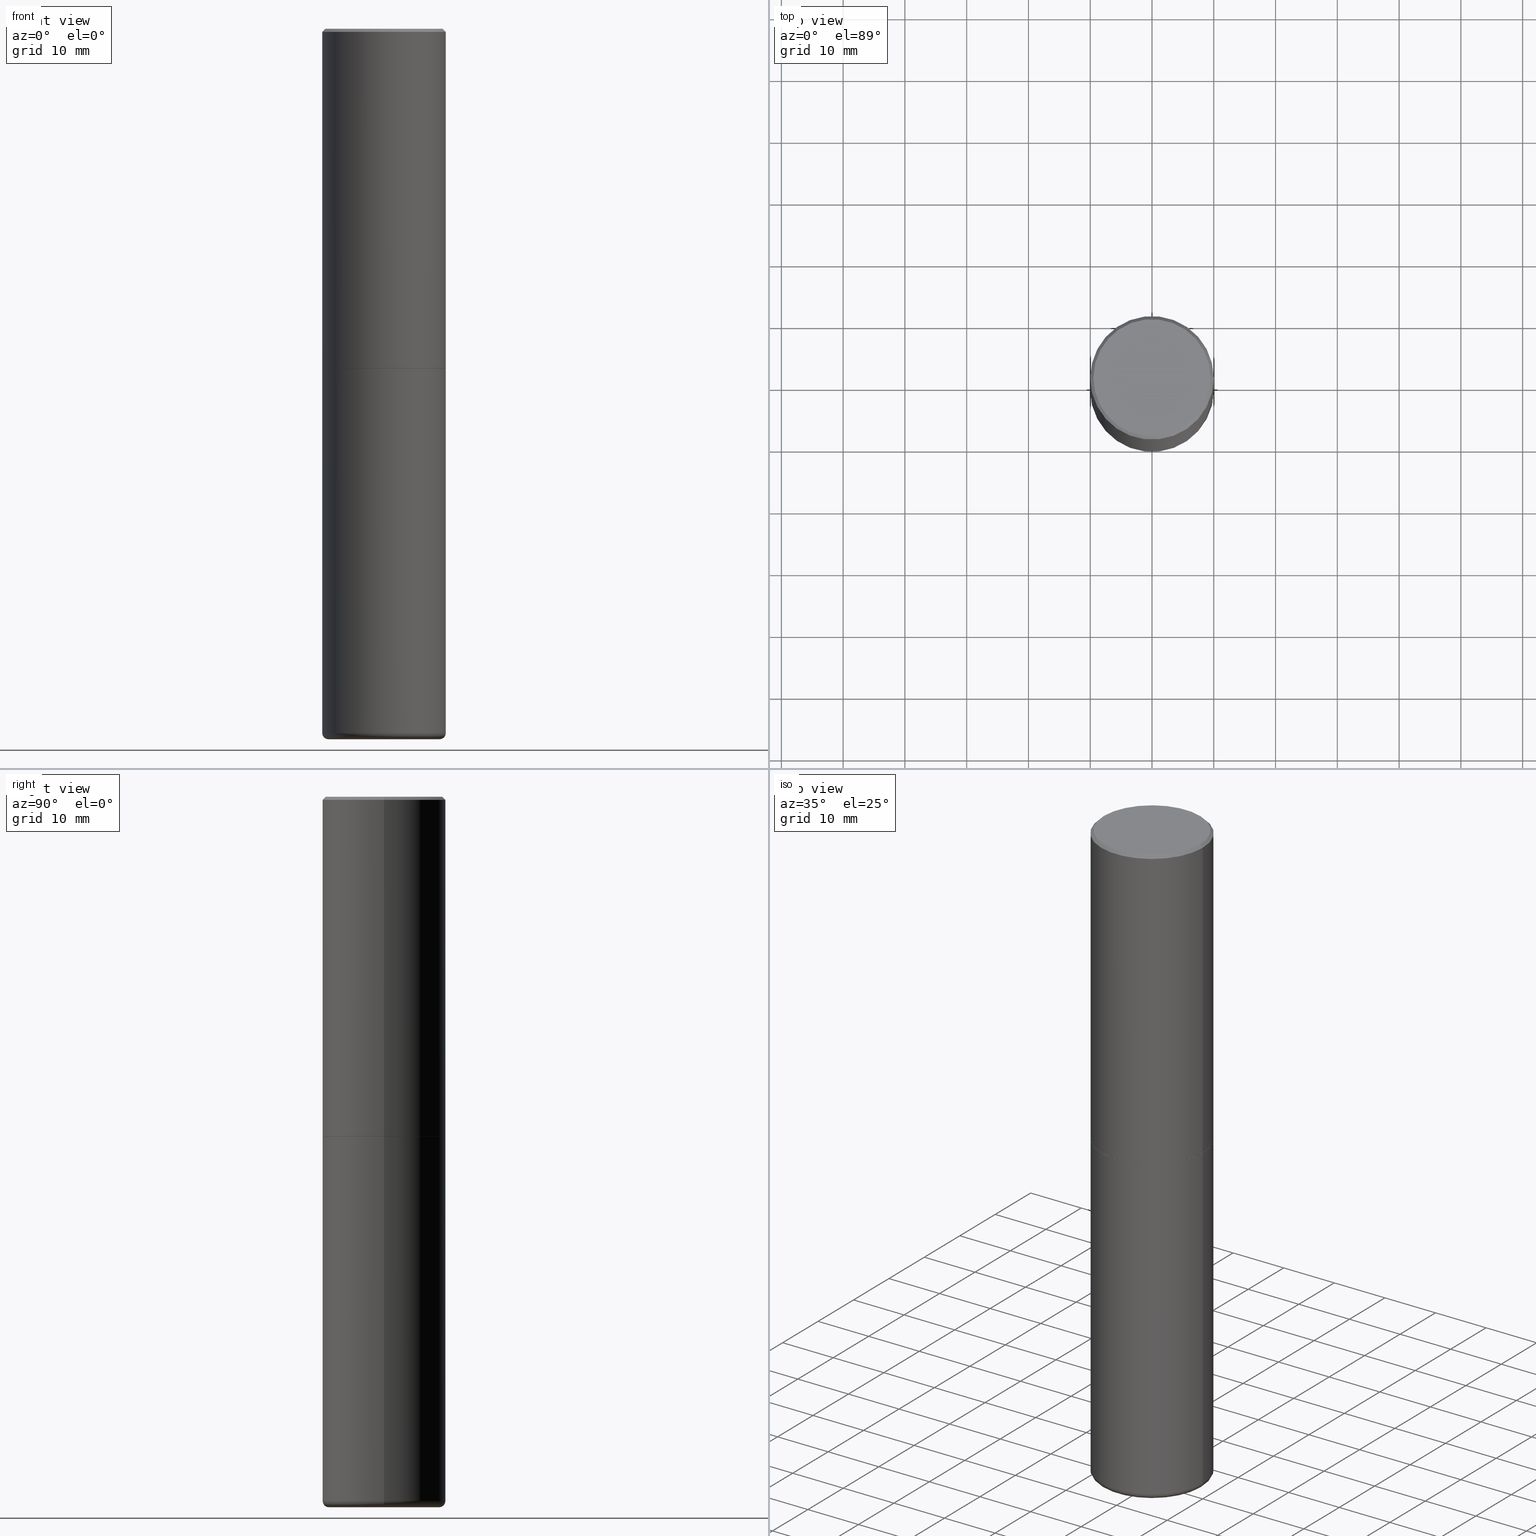
[diagram: canonical four-view strip — front | top / right | iso, engineering-drawing reading convention]
A machine part, canonical four-view strip (front | top / right | iso — engineering-drawing reading convention). The complete STEP part file that produces these views, byte-faithful:
ISO-10303-21;
HEADER;
FILE_DESCRIPTION (( 'STEP AP203' ),
    '1' );
FILE_NAME ('74528.STEP',
    '2024-03-06T15:24:09',
    ( '' ),
    ( '' ),
    'SwSTEP 2.0',
    'SolidWorks 2023',
    '' );
FILE_SCHEMA (( 'CONFIG_CONTROL_DESIGN' ));
ENDSEC;

DATA;
#1 = DIRECTION ( 'NONE',  ( 1.000000000000000000, -6.982962677686268288E-15, 0.000000000000000000 ) ) ;
#2 = EDGE_LOOP ( 'NONE', ( #132, #71, #366, #208 ) ) ;
#3 = ORIENTED_EDGE ( 'NONE', *, *, #265, .T. ) ;
#4 = CARTESIAN_POINT ( 'NONE',  ( -0.3937000000000000499, 2.797406750687514786E-15, -1.936584745033356735E-29 ) ) ;
#5 = ORIENTED_EDGE ( 'NONE', *, *, #145, .F. ) ;
#6 = CARTESIAN_POINT ( 'NONE',  ( 5.295418152913293224E-29, -7.560453691130945845E-15, -2.165399999999999547 ) ) ;
#7 = CIRCLE ( 'NONE', #284, 0.3937000000000000499 ) ;
#8 = LOCAL_TIME ( 10, 24, 9.000000000000000000, #286 ) ;
#9 = UNCERTAINTY_MEASURE_WITH_UNIT (LENGTH_MEASURE( 1.000000000000000082E-05 ), #306, 'distance_accuracy_value', 'NONE');
#10 = VERTEX_POINT ( 'NONE', #56 ) ;
#11 = CARTESIAN_POINT ( 'NONE',  ( 5.295418152913293224E-29, -7.560453691130945845E-15, -2.165399999999999547 ) ) ;
#12 = CARTESIAN_POINT ( 'NONE',  ( 0.000000000000000000, 0.000000000000000000, 0.000000000000000000 ) ) ;
#13 = CARTESIAN_POINT ( 'NONE',  ( 4.890937612370294178E-31, -6.982962677686321191E-17, -0.02000000000000008715 ) ) ;
#14 = CC_DESIGN_PERSON_AND_ORGANIZATION_ASSIGNMENT ( #210, #274, ( #48 ) ) ;
#15 = ORIENTED_EDGE ( 'NONE', *, *, #38, .T. ) ;
#16 = DIRECTION ( 'NONE',  ( 2.438088387897960049E-29, -3.491481338843145188E-15, -1.000000000000000000 ) ) ;
#17 = CARTESIAN_POINT ( 'NONE',  ( 5.295418152913293224E-29, -7.560453691130945845E-15, -2.165399999999999547 ) ) ;
#18 = ADVANCED_FACE ( 'NONE', ( #401 ), #266, .F. ) ;
#19 = CARTESIAN_POINT ( 'NONE',  ( -0.3937000000000000499, 2.679362779428219918E-15, -0.02000000000000008715 ) ) ;
#20 = AXIS2_PLACEMENT_3D ( 'NONE', #308, #239, #396 ) ;
#21 = ORIENTED_EDGE ( 'NONE', *, *, #107, .F. ) ;
#22 = ORIENTED_EDGE ( 'NONE', *, *, #359, .T. ) ;
#23 = ORIENTED_EDGE ( 'NONE', *, *, #89, .T. ) ;
#24 = CIRCLE ( 'NONE', #339, 0.03940000000000033753 ) ;
#25 = AXIS2_PLACEMENT_3D ( 'NONE', #399, #304, #82 ) ;
#26 = ORIENTED_EDGE ( 'NONE', *, *, #297, .F. ) ;
#27 = APPROVAL_DATE_TIME ( #124, #415 ) ;
#28 = PERSON_AND_ORGANIZATION ( #385, #279 ) ;
#29 = PERSON_AND_ORGANIZATION ( #385, #279 ) ;
#30 = DIRECTION ( 'NONE',  ( 0.7071067811865450192, -7.319954787623246579E-15, -0.7071067811865500152 ) ) ;
#31 = PERSON_AND_ORGANIZATION ( #385, #279 ) ;
#32 = AXIS2_PLACEMENT_3D ( 'NONE', #219, #156, #349 ) ;
#33 = EDGE_CURVE ( 'NONE', #293, #326, #407, .T. ) ;
#34 = CARTESIAN_POINT ( 'NONE',  ( 1.097575309592012950E-28, -1.567046654499580152E-14, -4.488199999999999079 ) ) ;
#35 = DATE_TIME_ROLE ( 'classification_date' ) ;
#36 = CARTESIAN_POINT ( 'NONE',  ( 6.196559828010245443E-29, -2.279008847458637242E-14, -4.527600000000000513 ) ) ;
#37 = DATE_AND_TIME ( #62, #8 ) ;
#38 = EDGE_CURVE ( 'NONE', #331, #393, #227, .T. ) ;
#39 = VERTEX_POINT ( 'NONE', #19 ) ;
#40 = PERSON_AND_ORGANIZATION ( #385, #279 ) ;
#41 = AXIS2_PLACEMENT_3D ( 'NONE', #95, #343, #64 ) ;
#42 = EDGE_LOOP ( 'NONE', ( #165, #15, #133, #307 ) ) ;
#43 = ORIENTED_EDGE ( 'NONE', *, *, #79, .T. ) ;
#44 = DIRECTION ( 'NONE',  ( 1.000000000000000000, -6.982962677686261189E-15, 0.000000000000000000 ) ) ;
#45 = CARTESIAN_POINT ( 'NONE',  ( 1.097575309592012950E-28, -1.567046654499580152E-14, -4.488199999999999079 ) ) ;
#46 = VERTEX_POINT ( 'NONE', #376 ) ;
#47 = CARTESIAN_POINT ( 'NONE',  ( -0.3926999999999999935, -4.764853913452808876E-15, -2.165399999999999547 ) ) ;
#48 = PRODUCT_DEFINITION ( 'UNKNOWN', '', #363, #164 ) ;
#49 = VECTOR ( 'NONE', #365, 39.37007874015748143 ) ;
#50 = CARTESIAN_POINT ( 'NONE',  ( 5.295418152913293224E-29, -7.560453691130945845E-15, -2.165399999999999547 ) ) ;
#51 = DIRECTION ( 'NONE',  ( -2.445468806185136597E-29, 3.491481338843145583E-15, 1.000000000000000000 ) ) ;
#52 = VERTEX_POINT ( 'NONE', #364 ) ;
#53 = DIRECTION ( 'NONE',  ( 1.000000000000000000, -6.982962677686262766E-15, 0.000000000000000000 ) ) ;
#54 = CARTESIAN_POINT ( 'NONE',  ( 0.3937000000000001609, -2.749192406205084400E-15, 1.919750796630860732E-29 ) ) ;
#55 = CIRCLE ( 'NONE', #248, 0.3737000000000003097 ) ;
#56 = CARTESIAN_POINT ( 'NONE',  ( -0.3737000000000003097, 2.644447966039789847E-15, -2.219626494852397645E-16 ) ) ;
#57 =( GEOMETRIC_REPRESENTATION_CONTEXT ( 3 ) GLOBAL_UNCERTAINTY_ASSIGNED_CONTEXT ( ( #9 ) ) GLOBAL_UNIT_ASSIGNED_CONTEXT ( ( #306, #272, #143 ) ) REPRESENTATION_CONTEXT ( 'NONE', 'WORKASPACE' ) );
#58 = VECTOR ( 'NONE', #332, 39.37007874015748143 ) ;
#59 = SHAPE_DEFINITION_REPRESENTATION ( #87, #346 ) ;
#60 = EDGE_CURVE ( 'NONE', #184, #39, #169, .T. ) ;
#61 = DIRECTION ( 'NONE',  ( -2.445468806185136597E-29, 3.491481338843145583E-15, 1.000000000000000000 ) ) ;
#62 = CALENDAR_DATE ( 2024, 6, 3 ) ;
#63 = CC_DESIGN_PERSON_AND_ORGANIZATION_ASSIGNMENT ( #40, #148, ( #363 ) ) ;
#64 = DIRECTION ( 'NONE',  ( 1.000000000000000000, -6.982962677686265922E-15, 4.876176775795935793E-29 ) ) ;
#65 = FACE_OUTER_BOUND ( 'NONE', #354, .T. ) ;
#66 = ORIENTED_EDGE ( 'NONE', *, *, #398, .T. ) ;
#67 = AXIS2_PLACEMENT_3D ( 'NONE', #180, #300, #138 ) ;
#68 = AXIS2_PLACEMENT_3D ( 'NONE', #213, #61, #317 ) ;
#69 = CARTESIAN_POINT ( 'NONE',  ( 0.3926999999999999935, -1.030266313465834305E-14, -2.165399999999999547 ) ) ;
#70 = MECHANICAL_CONTEXT ( 'NONE', #258, 'mechanical' ) ;
#71 = ORIENTED_EDGE ( 'NONE', *, *, #297, .T. ) ;
#72 = ORIENTED_EDGE ( 'NONE', *, *, #33, .F. ) ;
#73 = DIMENSIONAL_EXPONENTS ( 1.000000000000000000, 0.000000000000000000, 0.000000000000000000, 0.000000000000000000, 0.000000000000000000, 0.000000000000000000, 0.000000000000000000 ) ;
#74 = CLOSED_SHELL ( 'NONE', ( #377, #75, #348, #251, #117, #277, #206, #18 ) ) ;
#75 = ADVANCED_FACE ( 'NONE', ( #76 ), #108, .T. ) ;
#76 = FACE_OUTER_BOUND ( 'NONE', #144, .T. ) ;
#77 = DIRECTION ( 'NONE',  ( -1.000000000000000000, 7.105427357601014480E-15, 0.000000000000000000 ) ) ;
#78 = ORIENTED_EDGE ( 'NONE', *, *, #107, .T. ) ;
#79 = EDGE_CURVE ( 'NONE', #331, #39, #135, .T. ) ;
#80 = DIRECTION ( 'NONE',  ( -2.445468806185136597E-29, 3.491481338843145583E-15, 1.000000000000000000 ) ) ;
#81 = DIRECTION ( 'NONE',  ( 1.000000000000000000, -6.982962677686265922E-15, 4.876176775795935793E-29 ) ) ;
#82 = DIRECTION ( 'NONE',  ( 1.000000000000000000, -6.982962677686266711E-15, 4.877734241229871763E-29 ) ) ;
#83 = DIRECTION ( 'NONE',  ( -2.445468806185136597E-29, 3.491481338843145583E-15, 1.000000000000000000 ) ) ;
#84 = AXIS2_PLACEMENT_3D ( 'NONE', #17, #80, #197 ) ;
#85 = FACE_OUTER_BOUND ( 'NONE', #295, .T. ) ;
#86 = CARTESIAN_POINT ( 'NONE',  ( 4.890937612370294178E-31, -6.982962677686321191E-17, -0.02000000000000008715 ) ) ;
#87 = PRODUCT_DEFINITION_SHAPE ( 'NONE', 'NONE',  #48 ) ;
#88 = VECTOR ( 'NONE', #30, 39.37007874015748143 ) ;
#89 = EDGE_CURVE ( 'NONE', #150, #46, #342, .T. ) ;
#90 = PRODUCT_RELATED_PRODUCT_CATEGORY ( 'detail', '', ( #310 ) ) ;
#91 = AXIS2_PLACEMENT_3D ( 'NONE', #86, #336, #166 ) ;
#92 = FACE_OUTER_BOUND ( 'NONE', #168, .T. ) ;
#93 = SECURITY_CLASSIFICATION_LEVEL ( 'unclassified' ) ;
#94 = PERSON_AND_ORGANIZATION_ROLE ( 'design_owner' ) ;
#95 = CARTESIAN_POINT ( 'NONE',  ( 5.295418152913293224E-29, -7.560453691130945845E-15, -2.165399999999999547 ) ) ;
#96 = EDGE_LOOP ( 'NONE', ( #21, #245 ) ) ;
#97 = VECTOR ( 'NONE', #402, 39.37007874015748143 ) ;
#98 = COORDINATED_UNIVERSAL_TIME_OFFSET ( 5, 0, .BEHIND. ) ;
#99 = DIRECTION ( 'NONE',  ( 1.000000000000000000, 0.000000000000000000, 0.000000000000000000 ) ) ;
#100 = MANIFOLD_SOLID_BREP ( 'Body-Move/Copy2[1]', #373 ) ;
#101 = LINE ( 'NONE', #69, #209 ) ;
#102 = ORIENTED_EDGE ( 'NONE', *, *, #181, .T. ) ;
#103 = CARTESIAN_POINT ( 'NONE',  ( 0.3937000000000002164, -1.841965895120088790E-14, -4.488199999999999079 ) ) ;
#104 = CARTESIAN_POINT ( 'NONE',  ( -0.3937000000000000499, 2.679362779428219918E-15, -0.02000000000000008715 ) ) ;
#105 = AXIS2_PLACEMENT_3D ( 'NONE', #292, #125, #259 ) ;
#106 = DIRECTION ( 'NONE',  ( -2.445468806185136597E-29, 3.491481338843145583E-15, 1.000000000000000000 ) ) ;
#107 = EDGE_CURVE ( 'NONE', #323, #225, #160, .T. ) ;
#108 = CYLINDRICAL_SURFACE ( 'NONE', #221, 0.3937000000000001609 ) ;
#109 = LINE ( 'NONE', #4, #299 ) ;
#110 = DIRECTION ( 'NONE',  ( -2.445468806185136597E-29, 3.491481338843145583E-15, 1.000000000000000000 ) ) ;
#111 = DIRECTION ( 'NONE',  ( 1.000000000000000000, -6.982962677686268288E-15, 0.000000000000000000 ) ) ;
#112 = CARTESIAN_POINT ( 'NONE',  ( 0.3737000000000003097, -2.667287895133369937E-15, -2.219626494852029345E-16 ) ) ;
#113 = VERTEX_POINT ( 'NONE', #112 ) ;
#114 = EDGE_CURVE ( 'NONE', #391, #52, #192, .T. ) ;
#115 = AXIS2_PLACEMENT_3D ( 'NONE', #298, #106, #81 ) ;
#116 = AXIS2_PLACEMENT_3D ( 'NONE', #11, #174, #111 ) ;
#117 = ADVANCED_FACE ( 'NONE', ( #263 ), #171, .T. ) ;
#118 = APPROVAL_PERSON_ORGANIZATION ( #220, #328, #383 ) ;
#119 = EDGE_LOOP ( 'NONE', ( #26, #22, #356, #226 ) ) ;
#120 = DATE_TIME_ROLE ( 'creation_date' ) ;
#121 = AXIS2_PLACEMENT_3D ( 'NONE', #45, #233, #53 ) ;
#122 = ORIENTED_EDGE ( 'NONE', *, *, #367, .F. ) ;
#123 = PERSON_AND_ORGANIZATION ( #385, #279 ) ;
#124 = DATE_AND_TIME ( #278, #353 ) ;
#125 = DIRECTION ( 'NONE',  ( -2.445468806185136597E-29, 3.491481338843145583E-15, 1.000000000000000000 ) ) ;
#126 = FACE_OUTER_BOUND ( 'NONE', #237, .T. ) ;
#127 = COORDINATED_UNIVERSAL_TIME_OFFSET ( 5, 0, .BEHIND. ) ;
#128 = ORIENTED_EDGE ( 'NONE', *, *, #204, .T. ) ;
#129 = DIRECTION ( 'NONE',  ( -2.445468806185136597E-29, 3.491481338843145583E-15, 1.000000000000000000 ) ) ;
#130 = EDGE_CURVE ( 'NONE', #113, #10, #55, .T. ) ;
#131 = DIRECTION ( 'NONE',  ( 1.000000000000000000, -6.982962677686261189E-15, 0.000000000000000000 ) ) ;
#132 = ORIENTED_EDGE ( 'NONE', *, *, #33, .T. ) ;
#133 = ORIENTED_EDGE ( 'NONE', *, *, #147, .T. ) ;
#134 = EDGE_CURVE ( 'NONE', #52, #391, #403, .T. ) ;
#135 = LINE ( 'NONE', #140, #97 ) ;
#136 = AXIS2_PLACEMENT_3D ( 'NONE', #395, #199, #77 ) ;
#137 = CARTESIAN_POINT ( 'NONE',  ( -0.3937000000000002164, -1.287305979430828753E-14, -4.488199999999999079 ) ) ;
#138 = DIRECTION ( 'NONE',  ( 1.000000000000000000, -6.982962677686269077E-15, 0.000000000000000000 ) ) ;
#139 = DIRECTION ( 'NONE',  ( -2.445468806185136597E-29, 3.491481338843145583E-15, 1.000000000000000000 ) ) ;
#140 = CARTESIAN_POINT ( 'NONE',  ( -0.3937000000000001609, 2.797406750687515575E-15, -1.936584745033357296E-29 ) ) ;
#141 = DIRECTION ( 'NONE',  ( -1.000000000000000000, 6.982962677686265922E-15, -4.876176775795935793E-29 ) ) ;
#142 = DIRECTION ( 'NONE',  ( 1.000000000000000000, -6.982962677686262766E-15, 0.000000000000000000 ) ) ;
#143 =( NAMED_UNIT ( * ) SI_UNIT ( $, .STERADIAN. ) SOLID_ANGLE_UNIT ( ) );
#144 = EDGE_LOOP ( 'NONE', ( #409, #43, #360, #276 ) ) ;
#145 = EDGE_CURVE ( 'NONE', #393, #331, #152, .T. ) ;
#146 = ORIENTED_EDGE ( 'NONE', *, *, #260, .T. ) ;
#147 = EDGE_CURVE ( 'NONE', #393, #184, #268, .T. ) ;
#148 = PERSON_AND_ORGANIZATION_ROLE ( 'creator' ) ;
#149 = APPROVAL_STATUS ( 'not_yet_approved' ) ;
#150 = VERTEX_POINT ( 'NONE', #47 ) ;
#151 = FACE_OUTER_BOUND ( 'NONE', #96, .T. ) ;
#152 = CIRCLE ( 'NONE', #200, 0.3937000000000002720 ) ;
#153 = EDGE_CURVE ( 'NONE', #10, #39, #178, .T. ) ;
#154 = PERSON_AND_ORGANIZATION ( #385, #279 ) ;
#155 = EDGE_LOOP ( 'NONE', ( #159, #128, #252, #196 ) ) ;
#156 = DIRECTION ( 'NONE',  ( 2.445468806185136597E-29, -3.491481338843145583E-15, -1.000000000000000000 ) ) ;
#157 = APPROVAL_DATE_TIME ( #388, #234 ) ;
#158 = ADVANCED_FACE ( 'NONE', ( #236 ), #372, .T. ) ;
#159 = ORIENTED_EDGE ( 'NONE', *, *, #321, .F. ) ;
#160 = CIRCLE ( 'NONE', #255, 0.3543000000000000038 ) ;
#161 = CC_DESIGN_APPROVAL ( #234, ( #262 ) ) ;
#162 = DIRECTION ( 'NONE',  ( 1.000000000000000000, -6.982962677686265922E-15, 0.000000000000000000 ) ) ;
#163 = CARTESIAN_POINT ( 'NONE',  ( 0.3543000000000000038, -1.814453022170004631E-14, -4.488199999999999079 ) ) ;
#164 = DESIGN_CONTEXT ( 'detailed design', #283, 'design' ) ;
#165 = ORIENTED_EDGE ( 'NONE', *, *, #79, .F. ) ;
#166 = DIRECTION ( 'NONE',  ( 1.000000000000000000, -6.982962677686265922E-15, 0.000000000000000000 ) ) ;
#167 = CYLINDRICAL_SURFACE ( 'NONE', #115, 0.3937000000000000499 ) ;
#168 = EDGE_LOOP ( 'NONE', ( #122, #23, #146, #191 ) ) ;
#169 = CIRCLE ( 'NONE', #91, 0.3937000000000000499 ) ;
#170 = CARTESIAN_POINT ( 'NONE',  ( 5.295418152913293224E-29, -7.560453691130945845E-15, -2.165399999999999547 ) ) ;
#171 = CYLINDRICAL_SURFACE ( 'NONE', #20, 0.3937000000000001609 ) ;
#172 = CC_DESIGN_SECURITY_CLASSIFICATION ( #262, ( #363 ) ) ;
#173 = CARTESIAN_POINT ( 'NONE',  ( 0.3543000000000000038, -1.828209458645046868E-14, -4.527600000000000513 ) ) ;
#174 = DIRECTION ( 'NONE',  ( -2.445468806185136597E-29, 3.491481338843145583E-15, 1.000000000000000000 ) ) ;
#175 = CARTESIAN_POINT ( 'NONE',  ( 1.107210456688382522E-28, -1.580803090974622705E-14, -4.527600000000000513 ) ) ;
#176 = DIRECTION ( 'NONE',  ( -1.000000000000000000, 6.982962677686265922E-15, -4.876176775795935793E-29 ) ) ;
#177 = CARTESIAN_POINT ( 'NONE',  ( -0.3926999999999999935, -4.770152367801032067E-15, -2.165399999999999547 ) ) ;
#178 = LINE ( 'NONE', #104, #309 ) ;
#179 = LOCAL_TIME ( 10, 24, 9.000000000000000000, #98 ) ;
#180 = CARTESIAN_POINT ( 'NONE',  ( 5.292972684107107621E-29, -7.556962209792102838E-15, -2.164399999999999658 ) ) ;
#181 = EDGE_CURVE ( 'NONE', #39, #184, #7, .T. ) ;
#182 = ORIENTED_EDGE ( 'NONE', *, *, #114, .T. ) ;
#183 = APPROVAL_ROLE ( '' ) ;
#184 = VERTEX_POINT ( 'NONE', #224 ) ;
#185 = FACE_OUTER_BOUND ( 'NONE', #155, .T. ) ;
#186 = CIRCLE ( 'NONE', #291, 0.3543000000000000038 ) ;
#187 = AXIS2_PLACEMENT_3D ( 'NONE', #390, #322, #99 ) ;
#188 = ADVANCED_FACE ( 'NONE', ( #126 ), #238, .T. ) ;
#189 = CARTESIAN_POINT ( 'NONE',  ( 4.890937612370294178E-31, -6.982962677686321191E-17, -0.02000000000000008715 ) ) ;
#190 = ORIENTED_EDGE ( 'NONE', *, *, #130, .F. ) ;
#191 = ORIENTED_EDGE ( 'NONE', *, *, #38, .F. ) ;
#192 = CIRCLE ( 'NONE', #387, 0.3937000000000000499 ) ;
#193 = ORIENTED_EDGE ( 'NONE', *, *, #321, .T. ) ;
#194 = DIRECTION ( 'NONE',  ( 1.000000000000000000, -6.982962677686268288E-15, 0.000000000000000000 ) ) ;
#195 = FACE_OUTER_BOUND ( 'NONE', #2, .T. ) ;
#196 = ORIENTED_EDGE ( 'NONE', *, *, #359, .F. ) ;
#197 = DIRECTION ( 'NONE',  ( 1.000000000000000000, -6.982962677686265133E-15, 0.000000000000000000 ) ) ;
#198 = DIRECTION ( 'NONE',  ( -1.000000000000000000, 6.982962677686265922E-15, -4.876176775795935793E-29 ) ) ;
#199 = DIRECTION ( 'NONE',  ( 7.105427357601001859E-15, 1.000000000000000000, -3.491481338843145583E-15 ) ) ;
#200 = AXIS2_PLACEMENT_3D ( 'NONE', #375, #83, #338 ) ;
#201 = FACE_OUTER_BOUND ( 'NONE', #370, .T. ) ;
#202 = CARTESIAN_POINT ( 'NONE',  ( 0.000000000000000000, 0.000000000000000000, 0.000000000000000000 ) ) ;
#203 = LOCAL_TIME ( 10, 24, 9.000000000000000000, #414 ) ;
#204 = EDGE_CURVE ( 'NONE', #225, #323, #186, .T. ) ;
#205 = CARTESIAN_POINT ( 'NONE',  ( -0.3937000000000000499, -8.818053367375859687E-15, -2.165399999999999547 ) ) ;
#206 = ADVANCED_FACE ( 'NONE', ( #257 ), #285, .F. ) ;
#207 = LENGTH_MEASURE_WITH_UNIT ( LENGTH_MEASURE( 0.02539999999999999897 ), #240 );
#208 = ORIENTED_EDGE ( 'NONE', *, *, #355, .F. ) ;
#209 = VECTOR ( 'NONE', #246, 39.37007874015748143 ) ;
#210 = PERSON_AND_ORGANIZATION ( #385, #279 ) ;
#211 = AXIS2_PLACEMENT_3D ( 'NONE', #202, #51, #218 ) ;
#212 = CC_DESIGN_APPROVAL ( #415, ( #48 ) ) ;
#213 = CARTESIAN_POINT ( 'NONE',  ( 5.295418152913293224E-29, -7.560453691130945845E-15, -2.165399999999999547 ) ) ;
#214 = CALENDAR_DATE ( 2024, 6, 3 ) ;
#215 = APPLICATION_PROTOCOL_DEFINITION ( 'international standard', 'config_control_design', 1994, #283 ) ;
#216 = ADVANCED_FACE ( 'NONE', ( #185 ), #362, .T. ) ;
#217 = CC_DESIGN_PERSON_AND_ORGANIZATION_ASSIGNMENT ( #29, #94, ( #310 ) ) ;
#218 = DIRECTION ( 'NONE',  ( 1.000000000000000000, -6.982962677686265922E-15, 4.876176775795935793E-29 ) ) ;
#219 = CARTESIAN_POINT ( 'NONE',  ( 4.890937612370294178E-31, -6.982962677686321191E-17, -0.02000000000000008715 ) ) ;
#220 = PERSON_AND_ORGANIZATION ( #385, #279 ) ;
#221 = AXIS2_PLACEMENT_3D ( 'NONE', #12, #400, #394 ) ;
#222 = ORIENTED_EDGE ( 'NONE', *, *, #153, .F. ) ;
#223 = CARTESIAN_POINT ( 'NONE',  ( 1.107210456688382522E-28, -1.580803090974622705E-14, -4.527600000000000513 ) ) ;
#224 = CARTESIAN_POINT ( 'NONE',  ( 0.3937000000000000499, -2.770807688499515734E-15, -0.02000000000000008715 ) ) ;
#225 = VERTEX_POINT ( 'NONE', #358 ) ;
#226 = ORIENTED_EDGE ( 'NONE', *, *, #114, .F. ) ;
#227 = CIRCLE ( 'NONE', #67, 0.3937000000000002720 ) ;
#228 = APPROVAL_PERSON_ORGANIZATION ( #123, #234, #247 ) ;
#229 = DIRECTION ( 'NONE',  ( 1.000000000000000000, -6.982962677686266711E-15, 4.877734241229871763E-29 ) ) ;
#230 = FACE_OUTER_BOUND ( 'NONE', #324, .T. ) ;
#231 = EDGE_CURVE ( 'NONE', #323, #293, #24, .T. ) ;
#232 = CARTESIAN_POINT ( 'NONE',  ( 5.428027354543142984E-45, -7.749784485978325769E-31, -2.219626494852213988E-16 ) ) ;
#233 = DIRECTION ( 'NONE',  ( -2.445468806185136597E-29, 3.491481338843145583E-15, 1.000000000000000000 ) ) ;
#234 = APPROVAL ( #410, 'UNSPECIFIED' ) ;
#235 = CARTESIAN_POINT ( 'NONE',  ( 0.3937000000000002720, -1.030615461599718763E-14, -2.164399999999999658 ) ) ;
#236 = FACE_OUTER_BOUND ( 'NONE', #119, .T. ) ;
#237 = EDGE_LOOP ( 'NONE', ( #78, #193, #72, #327 ) ) ;
#238 = TOROIDAL_SURFACE ( 'NONE', #105, 0.3543000000000000038, 0.03940000000000033753 ) ;
#239 = DIRECTION ( 'NONE',  ( -2.445468806185136597E-29, 3.491481338843145583E-15, 1.000000000000000000 ) ) ;
#240 =( LENGTH_UNIT ( ) NAMED_UNIT ( * ) SI_UNIT ( $, .METRE. ) );
#241 = MANIFOLD_SOLID_BREP ( 'Body-Move/Copy2[2]', #74 ) ;
#242 = DIRECTION ( 'NONE',  ( -2.445468806185136597E-29, 3.491481338843145583E-15, 1.000000000000000000 ) ) ;
#243 = AXIS2_PLACEMENT_3D ( 'NONE', #34, #129, #392 ) ;
#244 = CIRCLE ( 'NONE', #121, 0.3937000000000000499 ) ;
#245 = ORIENTED_EDGE ( 'NONE', *, *, #204, .F. ) ;
#246 = DIRECTION ( 'NONE',  ( 0.7071067811866199593, -2.468850131083015945E-15, 0.7071067811864750752 ) ) ;
#247 = APPROVAL_ROLE ( '' ) ;
#248 = AXIS2_PLACEMENT_3D ( 'NONE', #232, #368, #229 ) ;
#249 = CONICAL_SURFACE ( 'NONE', #408, 0.3937000000000000499, 0.7853981633974447263 ) ;
#250 = DATE_AND_TIME ( #382, #203 ) ;
#251 = ADVANCED_FACE ( 'NONE', ( #65 ), #350, .T. ) ;
#252 = ORIENTED_EDGE ( 'NONE', *, *, #231, .T. ) ;
#253 = APPROVAL_DATE_TIME ( #250, #328 ) ;
#254 = DATE_AND_TIME ( #417, #179 ) ;
#255 = AXIS2_PLACEMENT_3D ( 'NONE', #175, #329, #44 ) ;
#256 = ORIENTED_EDGE ( 'NONE', *, *, #134, .T. ) ;
#257 = FACE_OUTER_BOUND ( 'NONE', #347, .T. ) ;
#258 = APPLICATION_CONTEXT ( 'configuration controlled 3d designs of mechanical parts and assemblies' ) ;
#259 = DIRECTION ( 'NONE',  ( 1.000000000000000000, -6.982962677686266711E-15, 4.883557194083112340E-29 ) ) ;
#260 = EDGE_CURVE ( 'NONE', #46, #393, #101, .T. ) ;
#261 = AXIS2_PLACEMENT_3D ( 'NONE', #36, #386, #198 ) ;
#262 = SECURITY_CLASSIFICATION ( '', '', #93 ) ;
#263 = FACE_OUTER_BOUND ( 'NONE', #42, .T. ) ;
#264 = DIRECTION ( 'NONE',  ( 2.445468806185136597E-29, -3.491481338843145583E-15, -1.000000000000000000 ) ) ;
#265 = EDGE_CURVE ( 'NONE', #113, #184, #381, .T. ) ;
#266 = PLANE ( 'NONE',  #334 ) ;
#267 = DIRECTION ( 'NONE',  ( 1.000000000000000000, -6.982962677686268288E-15, 0.000000000000000000 ) ) ;
#268 = LINE ( 'NONE', #54, #58 ) ;
#269 = ORIENTED_EDGE ( 'NONE', *, *, #367, .T. ) ;
#270 = DIRECTION ( 'NONE',  ( -0.7071067811866199593, 7.493145998870616062E-15, 0.7071067811864750752 ) ) ;
#271 = DIRECTION ( 'NONE',  ( -2.445468806185136597E-29, 3.491481338843145583E-15, 1.000000000000000000 ) ) ;
#272 =( NAMED_UNIT ( * ) PLANE_ANGLE_UNIT ( ) SI_UNIT ( $, .RADIAN. ) );
#273 = AXIS2_PLACEMENT_3D ( 'NONE', #337, #242, #142 ) ;
#274 = PERSON_AND_ORGANIZATION_ROLE ( 'creator' ) ;
#275 = CARTESIAN_POINT ( 'NONE',  ( 2.609533152651359776E-15, 0.3737000000000003097, -1.415747901068295320E-15 ) ) ;
#276 = ORIENTED_EDGE ( 'NONE', *, *, #147, .F. ) ;
#277 = ADVANCED_FACE ( 'NONE', ( #92 ), #378, .T. ) ;
#278 = CALENDAR_DATE ( 2024, 6, 3 ) ;
#279 = ORGANIZATION ( 'UNSPECIFIED', 'UNSPECIFIED', '' ) ;
#280 = ADVANCED_FACE ( 'NONE', ( #151 ), #289, .T. ) ;
#281 = ORIENTED_EDGE ( 'NONE', *, *, #411, .T. ) ;
#282 = PERSON_AND_ORGANIZATION_ROLE ( 'classification_officer' ) ;
#283 = APPLICATION_CONTEXT ( 'configuration controlled 3d designs of mechanical parts and assemblies' ) ;
#284 = AXIS2_PLACEMENT_3D ( 'NONE', #189, #288, #162 ) ;
#285 = PLANE ( 'NONE',  #41 ) ;
#286 = COORDINATED_UNIVERSAL_TIME_OFFSET ( 5, 0, .BEHIND. ) ;
#287 = ORIENTED_EDGE ( 'NONE', *, *, #411, .F. ) ;
#288 = DIRECTION ( 'NONE',  ( -2.445468806185136597E-29, 3.491481338843145583E-15, 1.000000000000000000 ) ) ;
#289 = PLANE ( 'NONE',  #261 ) ;
#290 = ORIENTED_EDGE ( 'NONE', *, *, #130, .T. ) ;
#291 = AXIS2_PLACEMENT_3D ( 'NONE', #223, #357, #131 ) ;
#292 = CARTESIAN_POINT ( 'NONE',  ( 1.097575309592012950E-28, -1.567046654499580152E-14, -4.488199999999999079 ) ) ;
#293 = VERTEX_POINT ( 'NONE', #103 ) ;
#294 = ADVANCED_FACE ( 'NONE', ( #195 ), #167, .T. ) ;
#295 = EDGE_LOOP ( 'NONE', ( #66, #269, #5, #380 ) ) ;
#296 = CARTESIAN_POINT ( 'NONE',  ( 5.295418152913293224E-29, -7.560453691130945845E-15, -2.165399999999999547 ) ) ;
#297 = EDGE_CURVE ( 'NONE', #326, #391, #109, .T. ) ;
#298 = CARTESIAN_POINT ( 'NONE',  ( 0.000000000000000000, 0.000000000000000000, 0.000000000000000000 ) ) ;
#299 = VECTOR ( 'NONE', #369, 39.37007874015748143 ) ;
#300 = DIRECTION ( 'NONE',  ( -2.445468806185136597E-29, 3.491481338843145583E-15, 1.000000000000000000 ) ) ;
#301 = DIRECTION ( 'NONE',  ( -0.7071067811865450192, 2.468850131082230634E-15, -0.7071067811865500152 ) ) ;
#302 = CARTESIAN_POINT ( 'NONE',  ( -0.3937000000000003830, -1.015989167596963746E-15, -2.164399999999999658 ) ) ;
#303 = ORIENTED_EDGE ( 'NONE', *, *, #153, .T. ) ;
#304 = DIRECTION ( 'NONE',  ( -2.445468806185136597E-29, 3.491481338843145583E-15, 1.000000000000000000 ) ) ;
#305 = DIRECTION ( 'NONE',  ( 1.000000000000000000, -6.982962677686265133E-15, 0.000000000000000000 ) ) ;
#306 =( CONVERSION_BASED_UNIT ( 'INCH', #207 ) LENGTH_UNIT ( ) NAMED_UNIT ( #73 ) );
#307 = ORIENTED_EDGE ( 'NONE', *, *, #181, .F. ) ;
#308 = CARTESIAN_POINT ( 'NONE',  ( 0.000000000000000000, 0.000000000000000000, 0.000000000000000000 ) ) ;
#309 = VECTOR ( 'NONE', #301, 39.37007874015748143 ) ;
#310 = PRODUCT ( '74528', '74528', '', ( #70 ) ) ;
#311 = COORDINATED_UNIVERSAL_TIME_OFFSET ( 5, 0, .BEHIND. ) ;
#312 = CC_DESIGN_DATE_AND_TIME_ASSIGNMENT ( #254, #35, ( #262 ) ) ;
#313 = ORIENTED_EDGE ( 'NONE', *, *, #265, .F. ) ;
#314 = CIRCLE ( 'NONE', #136, 0.03940000000000033753 ) ;
#315 = AXIS2_PLACEMENT_3D ( 'NONE', #170, #139, #267 ) ;
#316 = ORIENTED_EDGE ( 'NONE', *, *, #89, .F. ) ;
#317 = DIRECTION ( 'NONE',  ( 1.000000000000000000, -6.982962677686268288E-15, 0.000000000000000000 ) ) ;
#318 = AXIS2_PLACEMENT_3D ( 'NONE', #296, #271, #194 ) ;
#319 = APPROVAL_PERSON_ORGANIZATION ( #31, #415, #183 ) ;
#320 = CARTESIAN_POINT ( 'NONE',  ( 0.3937000000000000499, -2.770807688499515734E-15, -0.02000000000000008715 ) ) ;
#321 = EDGE_CURVE ( 'NONE', #225, #326, #314, .T. ) ;
#322 = DIRECTION ( 'NONE',  ( 0.000000000000000000, 0.000000000000000000, 1.000000000000000000 ) ) ;
#323 = VERTEX_POINT ( 'NONE', #173 ) ;
#324 = EDGE_LOOP ( 'NONE', ( #190, #3, #341, #222 ) ) ;
#325 = LOCAL_TIME ( 10, 24, 9.000000000000000000, #127 ) ;
#326 = VERTEX_POINT ( 'NONE', #137 ) ;
#327 = ORIENTED_EDGE ( 'NONE', *, *, #231, .F. ) ;
#328 = APPROVAL ( #345, 'UNSPECIFIED' ) ;
#329 = DIRECTION ( 'NONE',  ( -2.445468806185136597E-29, 3.491481338843145583E-15, 1.000000000000000000 ) ) ;
#330 = LINE ( 'NONE', #397, #49 ) ;
#331 = VERTEX_POINT ( 'NONE', #302 ) ;
#332 = DIRECTION ( 'NONE',  ( -2.445468806185136877E-29, 3.491481338843145188E-15, 1.000000000000000000 ) ) ;
#333 = DIRECTION ( 'NONE',  ( -1.000000000000000000, 6.982962677686265922E-15, 0.000000000000000000 ) ) ;
#334 = AXIS2_PLACEMENT_3D ( 'NONE', #275, #405, #176 ) ;
#335 = PLANE ( 'NONE',  #389 ) ;
#336 = DIRECTION ( 'NONE',  ( -2.445468806185136597E-29, 3.491481338843145583E-15, 1.000000000000000000 ) ) ;
#337 = CARTESIAN_POINT ( 'NONE',  ( 1.097575309592012950E-28, -1.567046654499580152E-14, -4.488199999999999079 ) ) ;
#338 = DIRECTION ( 'NONE',  ( 1.000000000000000000, -6.982962677686269077E-15, 0.000000000000000000 ) ) ;
#339 = AXIS2_PLACEMENT_3D ( 'NONE', #163, #344, #1 ) ;
#340 = CC_DESIGN_DATE_AND_TIME_ASSIGNMENT ( #37, #120, ( #48 ) ) ;
#341 = ORIENTED_EDGE ( 'NONE', *, *, #60, .T. ) ;
#342 = CIRCLE ( 'NONE', #318, 0.3926999999999999935 ) ;
#343 = DIRECTION ( 'NONE',  ( -2.438088387897960049E-29, 3.491481338843145188E-15, 1.000000000000000000 ) ) ;
#344 = DIRECTION ( 'NONE',  ( -6.982962677686266711E-15, -1.000000000000000000, 3.491481338843145583E-15 ) ) ;
#345 = APPROVAL_STATUS ( 'not_yet_approved' ) ;
#346 = ADVANCED_BREP_SHAPE_REPRESENTATION ( '74528', ( #100, #241, #187 ), #57 ) ;
#347 = EDGE_LOOP ( 'NONE', ( #416, #316 ) ) ;
#348 = ADVANCED_FACE ( 'NONE', ( #230 ), #249, .T. ) ;
#349 = DIRECTION ( 'NONE',  ( -1.000000000000000000, 6.982962677686265922E-15, 0.000000000000000000 ) ) ;
#350 = CONICAL_SURFACE ( 'NONE', #32, 0.3937000000000000499, 0.7853981633974447263 ) ;
#351 = CIRCLE ( 'NONE', #315, 0.3926999999999999935 ) ;
#352 = APPLICATION_PROTOCOL_DEFINITION ( 'international standard', 'config_control_design', 1994, #258 ) ;
#353 = LOCAL_TIME ( 10, 24, 9.000000000000000000, #311 ) ;
#354 = EDGE_LOOP ( 'NONE', ( #313, #287, #303, #102 ) ) ;
#355 = EDGE_CURVE ( 'NONE', #293, #52, #330, .T. ) ;
#356 = ORIENTED_EDGE ( 'NONE', *, *, #355, .T. ) ;
#357 = DIRECTION ( 'NONE',  ( -2.445468806185136597E-29, 3.491481338843145583E-15, 1.000000000000000000 ) ) ;
#358 = CARTESIAN_POINT ( 'NONE',  ( -0.3543000000000000038, -1.308181889562823723E-14, -4.527600000000000513 ) ) ;
#359 = EDGE_CURVE ( 'NONE', #326, #293, #244, .T. ) ;
#360 = ORIENTED_EDGE ( 'NONE', *, *, #60, .F. ) ;
#361 = EDGE_LOOP ( 'NONE', ( #281, #290 ) ) ;
#362 = TOROIDAL_SURFACE ( 'NONE', #243, 0.3543000000000000038, 0.03940000000000033753 ) ;
#363 = PRODUCT_DEFINITION_FORMATION_WITH_SPECIFIED_SOURCE ( 'ANY', '', #310, .NOT_KNOWN. ) ;
#364 = CARTESIAN_POINT ( 'NONE',  ( 0.3937000000000000499, -1.030964609733602906E-14, -2.165399999999999547 ) ) ;
#365 = DIRECTION ( 'NONE',  ( -2.445468806185136877E-29, 3.491481338843145188E-15, 1.000000000000000000 ) ) ;
#366 = ORIENTED_EDGE ( 'NONE', *, *, #134, .F. ) ;
#367 = EDGE_CURVE ( 'NONE', #150, #331, #371, .T. ) ;
#368 = DIRECTION ( 'NONE',  ( -2.445468806185136597E-29, 3.491481338843145583E-15, 1.000000000000000000 ) ) ;
#369 = DIRECTION ( 'NONE',  ( -2.445468806185136877E-29, 3.491481338843145188E-15, 1.000000000000000000 ) ) ;
#370 = EDGE_LOOP ( 'NONE', ( #256, #182 ) ) ;
#371 = LINE ( 'NONE', #177, #404 ) ;
#372 = CYLINDRICAL_SURFACE ( 'NONE', #211, 0.3937000000000000499 ) ;
#373 = CLOSED_SHELL ( 'NONE', ( #294, #188, #412, #158, #216, #280 ) ) ;
#374 = CC_DESIGN_APPROVAL ( #328, ( #363 ) ) ;
#375 = CARTESIAN_POINT ( 'NONE',  ( 5.292972684107107621E-29, -7.556962209792102838E-15, -2.164399999999999658 ) ) ;
#376 = CARTESIAN_POINT ( 'NONE',  ( 0.3926999999999999935, -1.030266313465834305E-14, -2.165399999999999547 ) ) ;
#377 = ADVANCED_FACE ( 'NONE', ( #85 ), #418, .T. ) ;
#378 = CONICAL_SURFACE ( 'NONE', #68, 0.3926999999999999935, 0.7853981633975507526 ) ;
#379 = CIRCLE ( 'NONE', #25, 0.3737000000000003097 ) ;
#380 = ORIENTED_EDGE ( 'NONE', *, *, #260, .F. ) ;
#381 = LINE ( 'NONE', #320, #88 ) ;
#382 = CALENDAR_DATE ( 2024, 6, 3 ) ;
#383 = APPROVAL_ROLE ( '' ) ;
#384 = CC_DESIGN_PERSON_AND_ORGANIZATION_ASSIGNMENT ( #28, #413, ( #363 ) ) ;
#385 = PERSON ( 'UNSPECIFIED', 'UNSPECIFIED', 'UNSPECIFIED', ('UNSPECIFIED'), ('UNSPECIFIED'), ('UNSPECIFIED') ) ;
#386 = DIRECTION ( 'NONE',  ( 2.438088387897960049E-29, -3.491481338843145188E-15, -1.000000000000000000 ) ) ;
#387 = AXIS2_PLACEMENT_3D ( 'NONE', #6, #110, #305 ) ;
#388 = DATE_AND_TIME ( #214, #325 ) ;
#389 = AXIS2_PLACEMENT_3D ( 'NONE', #50, #16, #141 ) ;
#390 = CARTESIAN_POINT ( 'NONE',  ( 0.000000000000000000, 0.000000000000000000, 0.000000000000000000 ) ) ;
#391 = VERTEX_POINT ( 'NONE', #205 ) ;
#392 = DIRECTION ( 'NONE',  ( 1.000000000000000000, -6.982962677686266711E-15, 4.883557194083112340E-29 ) ) ;
#393 = VERTEX_POINT ( 'NONE', #235 ) ;
#394 = DIRECTION ( 'NONE',  ( 1.000000000000000000, -6.982962677686266711E-15, 4.876176775795935793E-29 ) ) ;
#395 = CARTESIAN_POINT ( 'NONE',  ( -0.3543000000000000038, -1.315301363219776772E-14, -4.488199999999999079 ) ) ;
#396 = DIRECTION ( 'NONE',  ( 1.000000000000000000, -6.982962677686266711E-15, 4.876176775795935793E-29 ) ) ;
#397 = CARTESIAN_POINT ( 'NONE',  ( 0.3937000000000000499, -2.749192406205083217E-15, 1.919750796630860172E-29 ) ) ;
#398 = EDGE_CURVE ( 'NONE', #46, #150, #351, .T. ) ;
#399 = CARTESIAN_POINT ( 'NONE',  ( 5.428027354543142984E-45, -7.749784485978325769E-31, -2.219626494852213988E-16 ) ) ;
#400 = DIRECTION ( 'NONE',  ( -2.445468806185136597E-29, 3.491481338843145583E-15, 1.000000000000000000 ) ) ;
#401 = FACE_OUTER_BOUND ( 'NONE', #361, .T. ) ;
#402 = DIRECTION ( 'NONE',  ( -2.445468806185136877E-29, 3.491481338843145188E-15, 1.000000000000000000 ) ) ;
#403 = CIRCLE ( 'NONE', #84, 0.3937000000000000499 ) ;
#404 = VECTOR ( 'NONE', #270, 39.37007874015748143 ) ;
#405 = DIRECTION ( 'NONE',  ( 2.438088387897960049E-29, -3.491481338843145188E-15, -1.000000000000000000 ) ) ;
#406 = CC_DESIGN_PERSON_AND_ORGANIZATION_ASSIGNMENT ( #154, #282, ( #262 ) ) ;
#407 = CIRCLE ( 'NONE', #273, 0.3937000000000000499 ) ;
#408 = AXIS2_PLACEMENT_3D ( 'NONE', #13, #264, #333 ) ;
#409 = ORIENTED_EDGE ( 'NONE', *, *, #145, .T. ) ;
#410 = APPROVAL_STATUS ( 'not_yet_approved' ) ;
#411 = EDGE_CURVE ( 'NONE', #10, #113, #379, .T. ) ;
#412 = ADVANCED_FACE ( 'NONE', ( #201 ), #335, .F. ) ;
#413 = PERSON_AND_ORGANIZATION_ROLE ( 'design_supplier' ) ;
#414 = COORDINATED_UNIVERSAL_TIME_OFFSET ( 5, 0, .BEHIND. ) ;
#415 = APPROVAL ( #149, 'UNSPECIFIED' ) ;
#416 = ORIENTED_EDGE ( 'NONE', *, *, #398, .F. ) ;
#417 = CALENDAR_DATE ( 2024, 6, 3 ) ;
#418 = CONICAL_SURFACE ( 'NONE', #116, 0.3926999999999999935, 0.7853981633975507526 ) ;
ENDSEC;
END-ISO-10303-21;
